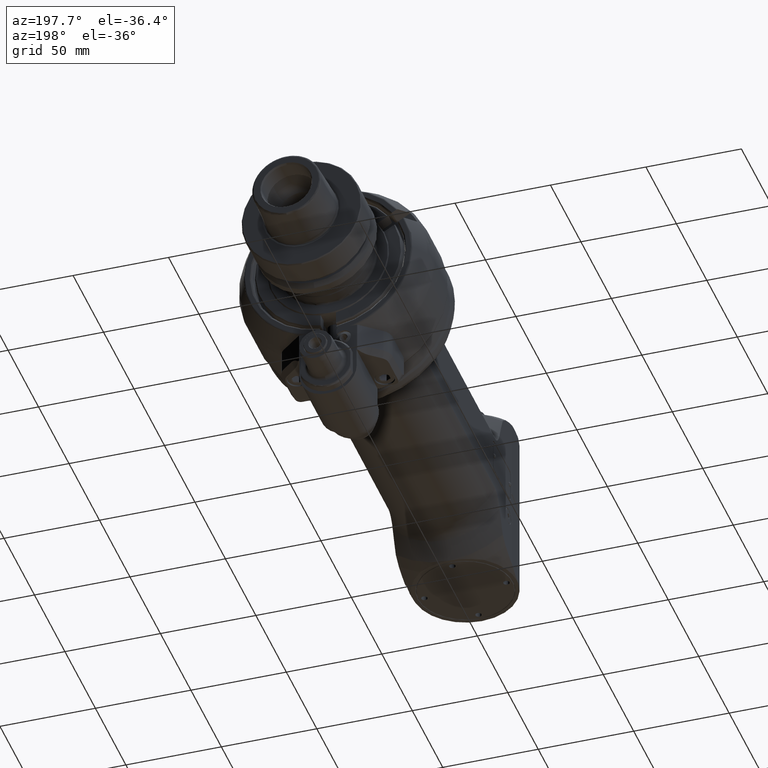
[diagram: clean part render]
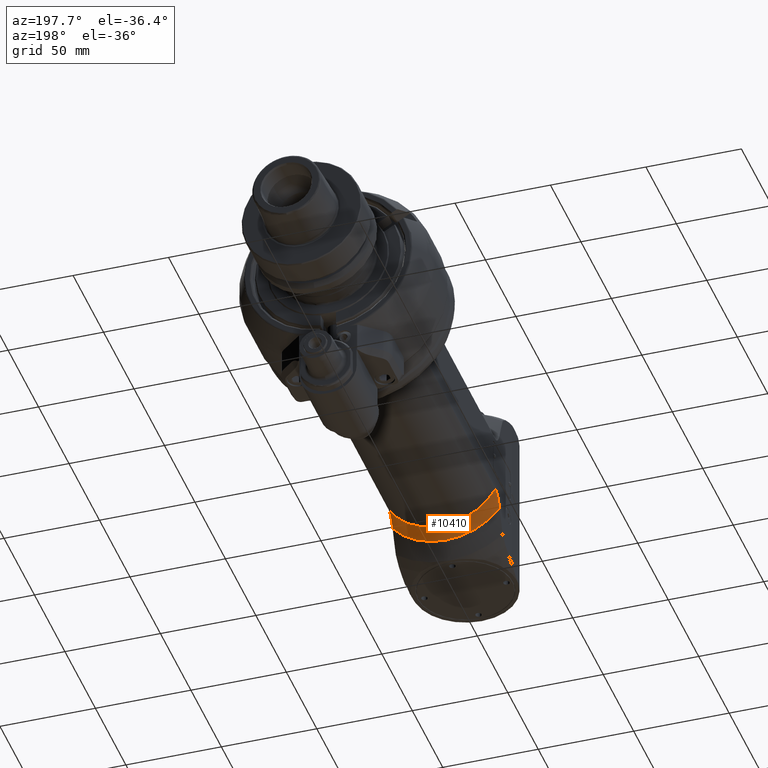
[diagram: same view with one face highlighted and labeled with its STEP entity id]
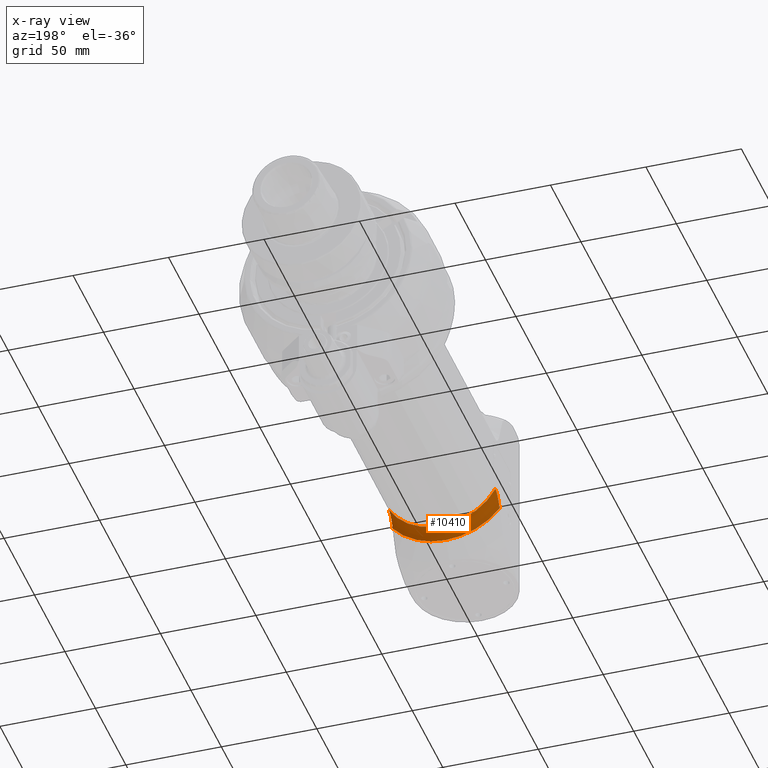
[diagram: x-ray of the same camera — body ghosted, the highlighted face saturated]
A machine part, auxiliary view. The second image highlights one B-rep face of the part: STEP entity #10410.
The next image is the same camera in x-ray: the body ghosted, the highlighted face saturated — about 0% of this face is hidden behind the body in this view.
In plain terms, the highlighted toroidal blend (fillet) surface has major radius 40 mm and minor (blend) radius 8 mm.
Its self-contained STEP definition (entity closure, byte-faithful):
#257=B_SPLINE_CURVE_WITH_KNOTS('',3,(#20409,#20410,#20411,#20412,#20413,
#20414,#20415,#20416,#20417,#20418,#20419,#20420,#20421,#20422),
 .UNSPECIFIED.,.F.,.F.,(4,2,2,2,2,2,4),(-2.93597407218818,-2.82337724519285,
-2.69378102431655,-2.51186335157645,-2.32994567883634,-2.09341832628399,
-1.94886990203693),.UNSPECIFIED.);
#274=B_SPLINE_CURVE_WITH_KNOTS('',3,(#20771,#20772,#20773,#20774,#20775,
#20776,#20777,#20778,#20779,#20780,#20781,#20782,#20783,#20784),
 .UNSPECIFIED.,.F.,.F.,(4,2,2,2,2,2,4),(-3.92307824233944,-3.77852981809237,
-3.54200246554002,-3.36008479279991,-3.17816712005981,-3.04857089918351,
-2.93597407218818),.UNSPECIFIED.);
#2657=FACE_OUTER_BOUND('',#3322,.T.);
#3322=EDGE_LOOP('',(#9189,#9190,#9191,#9192));
#4024=CIRCLE('',#11604,32.);
#4025=CIRCLE('',#11606,36.);
#4947=VERTEX_POINT('',#20404);
#4948=VERTEX_POINT('',#20408);
#5006=VERTEX_POINT('',#20768);
#5007=VERTEX_POINT('',#20770);
#6363=EDGE_CURVE('',#4948,#4947,#257,.T.);
#6439=EDGE_CURVE('',#5007,#5006,#274,.T.);
#6467=EDGE_CURVE('',#5006,#4948,#4024,.T.);
#6468=EDGE_CURVE('',#4947,#5007,#4025,.T.);
#9189=ORIENTED_EDGE('',*,*,#6468,.T.);
#9190=ORIENTED_EDGE('',*,*,#6439,.T.);
#9191=ORIENTED_EDGE('',*,*,#6467,.T.);
#9192=ORIENTED_EDGE('',*,*,#6363,.T.);
#9960=TOROIDAL_SURFACE('',#11605,40.,8.);
#10410=ADVANCED_FACE('',(#2657),#9960,.F.);
#11604=AXIS2_PLACEMENT_3D('',#20903,#14398,#14399);
#11605=AXIS2_PLACEMENT_3D('',#20904,#14400,#14401);
#11606=AXIS2_PLACEMENT_3D('',#20905,#14402,#14403);
#14398=DIRECTION('center_axis',(1.,0.,0.));
#14399=DIRECTION('ref_axis',(0.,1.,0.));
#14400=DIRECTION('center_axis',(1.,0.,0.));
#14401=DIRECTION('ref_axis',(0.,1.,1.22464679914735E-16));
#14402=DIRECTION('center_axis',(-1.,0.,0.));
#14403=DIRECTION('ref_axis',(0.,0.628539361054693,0.777777777777791));
#20404=CARTESIAN_POINT('',(158.3094010768,22.62741699797,28.));
#20408=CARTESIAN_POINT('',(151.3811978465,15.49193338483,28.));
#20409=CARTESIAN_POINT('Ctrl Pts',(151.3811978465,15.4919333848297,28.));
#20410=CARTESIAN_POINT('Ctrl Pts',(151.756520603151,15.4919333848297,28.));
#20411=CARTESIAN_POINT('Ctrl Pts',(152.201408747019,15.5620993782773,28.));
#20412=CARTESIAN_POINT('Ctrl Pts',(152.973572826115,15.7977099228234,28.));
#20413=CARTESIAN_POINT('Ctrl Pts',(153.440239087809,16.0234209939818,28.));
#20414=CARTESIAN_POINT('Ctrl Pts',(154.317498824133,16.5789816504194,28.));
#20415=CARTESIAN_POINT('Ctrl Pts',(154.820668957897,17.0081024201193,28.));
#20416=CARTESIAN_POINT('Ctrl Pts',(155.730416567205,17.9652022129463,28.));
#20417=CARTESIAN_POINT('Ctrl Pts',(156.138105696561,18.4921239661789,28.));
#20418=CARTESIAN_POINT('Ctrl Pts',(156.921636569653,19.6460707325903,28.));
#20419=CARTESIAN_POINT('Ctrl Pts',(157.347305959135,20.3989143849032,28.));
#20420=CARTESIAN_POINT('Ctrl Pts',(157.934574124956,21.6588360308148,28.));
#20421=CARTESIAN_POINT('Ctrl Pts',(158.135199044939,22.1473726465425,28.));
#20422=CARTESIAN_POINT('Ctrl Pts',(158.309401076778,22.6274169979778,28.));
#20768=CARTESIAN_POINT('',(151.3811978465,15.49193338483,-28.));
#20770=CARTESIAN_POINT('',(158.3094010768,22.62741699797,-28.));
#20771=CARTESIAN_POINT('Ctrl Pts',(158.309401076779,22.6274169979778,-28.));
#20772=CARTESIAN_POINT('Ctrl Pts',(158.135199044939,22.1473726465425,-28.));
#20773=CARTESIAN_POINT('Ctrl Pts',(157.934574124956,21.6588360308148,-28.));
#20774=CARTESIAN_POINT('Ctrl Pts',(157.347305959135,20.3989143849032,-28.));
#20775=CARTESIAN_POINT('Ctrl Pts',(156.921636569653,19.6460707325903,-28.));
#20776=CARTESIAN_POINT('Ctrl Pts',(156.138105696561,18.492123966179,-28.));
#20777=CARTESIAN_POINT('Ctrl Pts',(155.730416567205,17.9652022129463,-28.));
#20778=CARTESIAN_POINT('Ctrl Pts',(154.820668957897,17.0081024201193,-28.));
#20779=CARTESIAN_POINT('Ctrl Pts',(154.317498824133,16.5789816504194,-28.));
#20780=CARTESIAN_POINT('Ctrl Pts',(153.440239087809,16.0234209939818,-28.));
#20781=CARTESIAN_POINT('Ctrl Pts',(152.973572826116,15.7977099228234,-28.));
#20782=CARTESIAN_POINT('Ctrl Pts',(152.201408747019,15.5620993782773,-28.));
#20783=CARTESIAN_POINT('Ctrl Pts',(151.756520603151,15.4919333848297,-28.));
#20784=CARTESIAN_POINT('Ctrl Pts',(151.3811978465,15.4919333848297,-28.));
#20903=CARTESIAN_POINT('Origin',(151.3811978465,0.,0.));
#20904=CARTESIAN_POINT('Origin',(151.3811978465,0.,0.));
#20905=CARTESIAN_POINT('Origin',(158.3094010768,0.,0.));